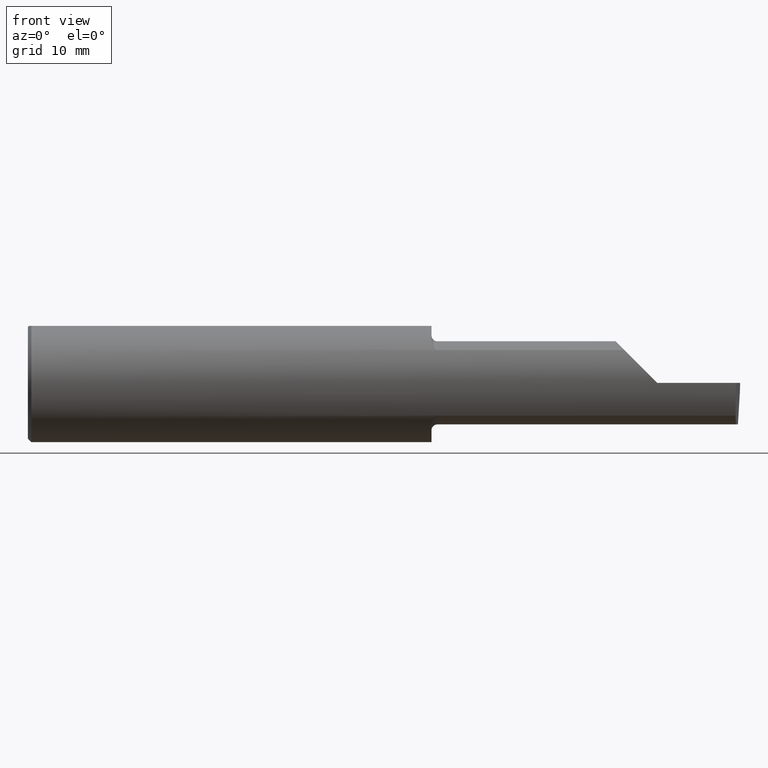
[diagram: clean part render]
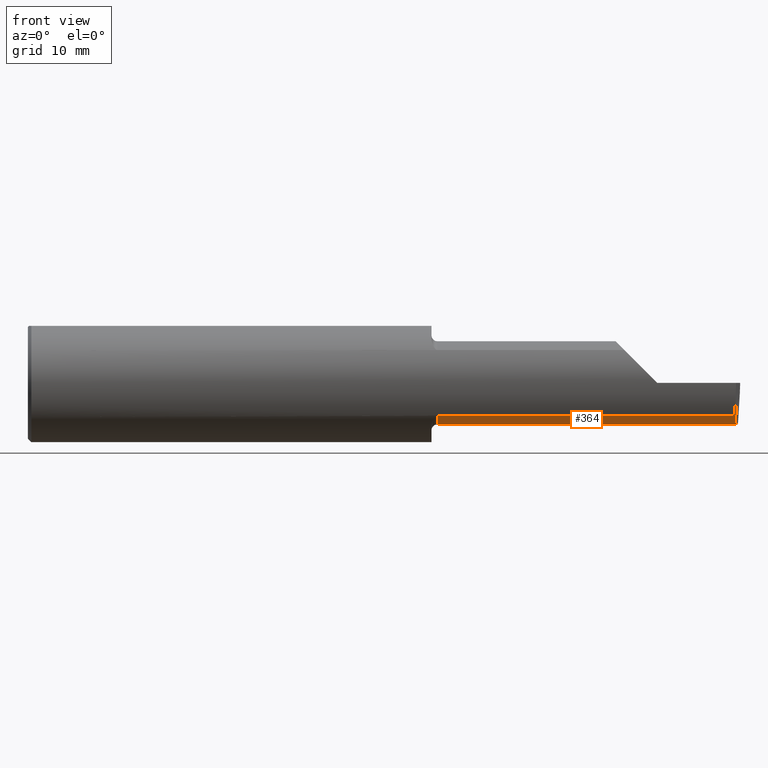
[diagram: same view with one face highlighted and labeled with its STEP entity id]
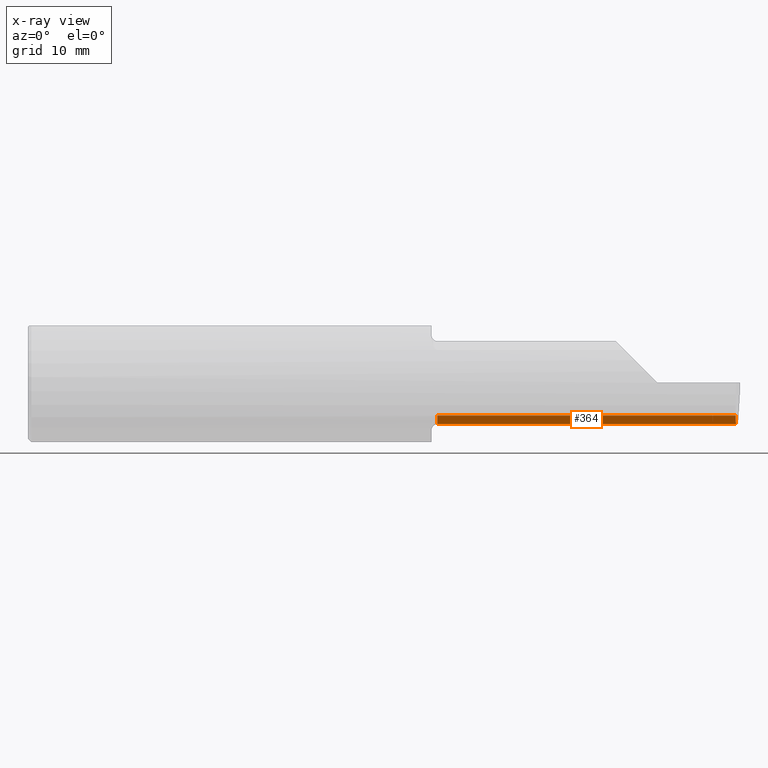
[diagram: x-ray of the same camera — body ghosted, the highlighted face saturated]
A machine part, front view. The second image highlights one B-rep face of the part: STEP entity #364.
The next image is the same camera in x-ray: the body ghosted, the highlighted face saturated — about 0% of this face is hidden behind the body in this view.
In plain terms, the highlighted cylindrical surface (partial cylindrical patch) has radius 4.445 mm, axis along (-1, -0, -0).
Its self-contained STEP definition (entity closure, byte-faithful):
#4 = ORIENTED_EDGE ( 'NONE', *, *, #215, .F. ) ;
#6 =( BOUNDED_CURVE ( )  B_SPLINE_CURVE ( 3, ( #467, #591, #779, #187 ),
 .UNSPECIFIED., .F., .T. ) 
 B_SPLINE_CURVE_WITH_KNOTS ( ( 4, 4 ),
 ( 0.2675252011803428975, 0.9270880441442503894 ),
 .UNSPECIFIED. ) 
 CURVE ( )  GEOMETRIC_REPRESENTATION_ITEM ( )  RATIONAL_B_SPLINE_CURVE ( ( 1.000000000000000000, 0.9640754331822828371, 0.9640754331822828371, 1.000000000000000000 ) ) 
 REPRESENTATION_ITEM ( '' )  );
#17 = CARTESIAN_POINT ( 'NONE',  ( 2.299500000000000099, -0.2080850024789291652, -0.1382955322609665250 ) ) ;
#35 = ORIENTED_EDGE ( 'NONE', *, *, #141, .F. ) ;
#57 = ORIENTED_EDGE ( 'NONE', *, *, #96, .F. ) ;
#58 = DIRECTION ( 'NONE',  ( -1.000000000000000000, -0.000000000000000000, -0.000000000000000000 ) ) ;
#66 = DIRECTION ( 'NONE',  ( 0.000000000000000000, 0.000000000000000000, 1.000000000000000000 ) ) ;
#80 = CARTESIAN_POINT ( 'NONE',  ( 2.980479240051444378, -0.2080850024789291652, -0.1382955322609665250 ) ) ;
#84 = AXIS2_PLACEMENT_3D ( 'NONE', #680, #307, #66 ) ;
#94 = CARTESIAN_POINT ( 'NONE',  ( 1.700000000000000178, -0.1008499999999999536, -0.1749999999999999889 ) ) ;
#96 = EDGE_CURVE ( 'NONE', #753, #487, #449, .T. ) ;
#141 = EDGE_CURVE ( 'NONE', #487, #663, #519, .T. ) ;
#155 = DIRECTION ( 'NONE',  ( -1.000000000000000000, -0.000000000000000000, -0.000000000000000000 ) ) ;
#187 = CARTESIAN_POINT ( 'NONE',  ( 2.983262242683407006, -0.1008499999999999674, -0.1749999999999999889 ) ) ;
#215 = EDGE_CURVE ( 'NONE', #663, #369, #794, .T. ) ;
#223 = CARTESIAN_POINT ( 'NONE',  ( 1.725000000000000089, -0.1008499999999999674, 0.000000000000000000 ) ) ;
#307 = DIRECTION ( 'NONE',  ( -1.000000000000000000, -0.000000000000000000, -0.000000000000000000 ) ) ;
#330 = CARTESIAN_POINT ( 'NONE',  ( 3.000000000000000444, -0.1008499999999999813, -0.1749999999999999889 ) ) ;
#360 = EDGE_LOOP ( 'NONE', ( #35, #57, #737, #554, #4 ) ) ;
#364 = ADVANCED_FACE ( 'NONE', ( #440 ), #434, .T. ) ;
#369 = VERTEX_POINT ( 'NONE', #553 ) ;
#381 = CARTESIAN_POINT ( 'NONE',  ( 2.983262242683407006, -0.1008499999999999674, -0.1749999999999999889 ) ) ;
#395 = VECTOR ( 'NONE', #570, 39.37007874015748143 ) ;
#434 = CYLINDRICAL_SURFACE ( 'NONE', #84, 0.1749999999999999889 ) ;
#440 = FACE_OUTER_BOUND ( 'NONE', #360, .T. ) ;
#449 = LINE ( 'NONE', #330, #598 ) ;
#467 = CARTESIAN_POINT ( 'NONE',  ( 2.980479240051444378, -0.2080850024789291652, -0.1382955322609665250 ) ) ;
#472 = CARTESIAN_POINT ( 'NONE',  ( 1.725000000000000089, -0.1008499999999999536, -0.1749999999999999889 ) ) ;
#487 = VERTEX_POINT ( 'NONE', #569 ) ;
#519 = LINE ( 'NONE', #94, #395 ) ;
#527 = EDGE_CURVE ( 'NONE', #778, #369, #577, .T. ) ;
#553 = CARTESIAN_POINT ( 'NONE',  ( 1.725000000000000089, -0.2080850024789291375, -0.1382955322609665805 ) ) ;
#554 = ORIENTED_EDGE ( 'NONE', *, *, #527, .T. ) ;
#569 = CARTESIAN_POINT ( 'NONE',  ( 2.885029432995152465, -0.1008500000000000091, -0.1749999999999999889 ) ) ;
#570 = DIRECTION ( 'NONE',  ( -1.000000000000000000, -0.000000000000000000, -0.000000000000000000 ) ) ;
#577 = LINE ( 'NONE', #17, #597 ) ;
#591 = CARTESIAN_POINT ( 'NONE',  ( 2.980931506555613453, -0.1771157075472509779, -0.1623092683844330475 ) ) ;
#597 = VECTOR ( 'NONE', #155, 39.37007874015748143 ) ;
#598 = VECTOR ( 'NONE', #708, 39.37007874015748143 ) ;
#616 = EDGE_CURVE ( 'NONE', #778, #753, #6, .T. ) ;
#663 = VERTEX_POINT ( 'NONE', #472 ) ;
#680 = CARTESIAN_POINT ( 'NONE',  ( 1.700000000000000178, -0.1008499999999999674, 0.000000000000000000 ) ) ;
#708 = DIRECTION ( 'NONE',  ( -1.000000000000000000, -0.000000000000000000, -0.000000000000000000 ) ) ;
#715 = DIRECTION ( 'NONE',  ( 0.000000000000000000, 0.000000000000000000, 1.000000000000000000 ) ) ;
#737 = ORIENTED_EDGE ( 'NONE', *, *, #616, .F. ) ;
#753 = VERTEX_POINT ( 'NONE', #381 ) ;
#768 = AXIS2_PLACEMENT_3D ( 'NONE', #223, #58, #715 ) ;
#778 = VERTEX_POINT ( 'NONE', #80 ) ;
#779 = CARTESIAN_POINT ( 'NONE',  ( 2.981893741990786495, -0.1400387324517231025, -0.1750000000000000167 ) ) ;
#794 = CIRCLE ( 'NONE', #768, 0.1749999999999999889 ) ;